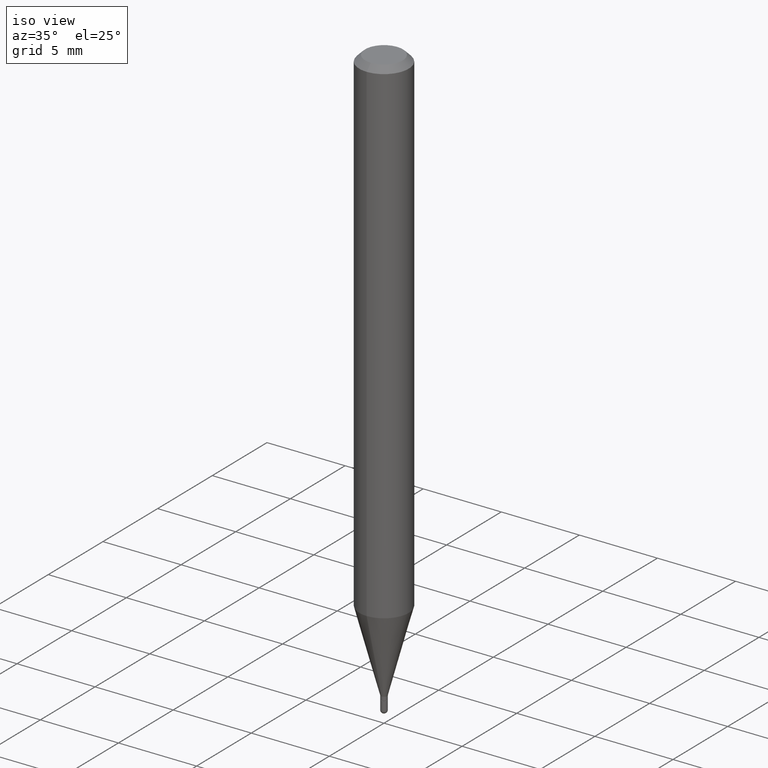
[diagram: clean part render]
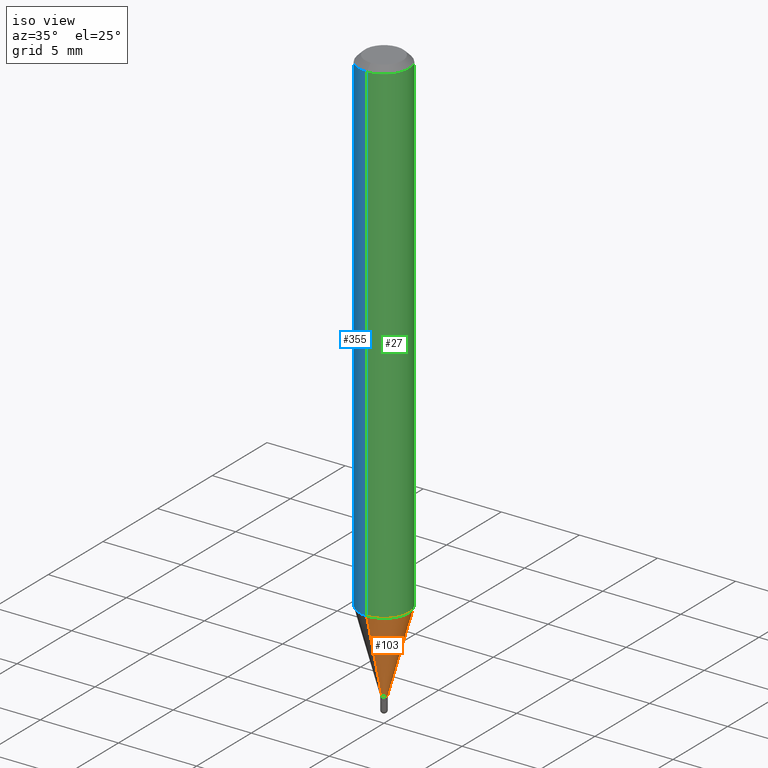
[diagram: same view with three faces highlighted in distinct colors, each labeled with its STEP entity id]
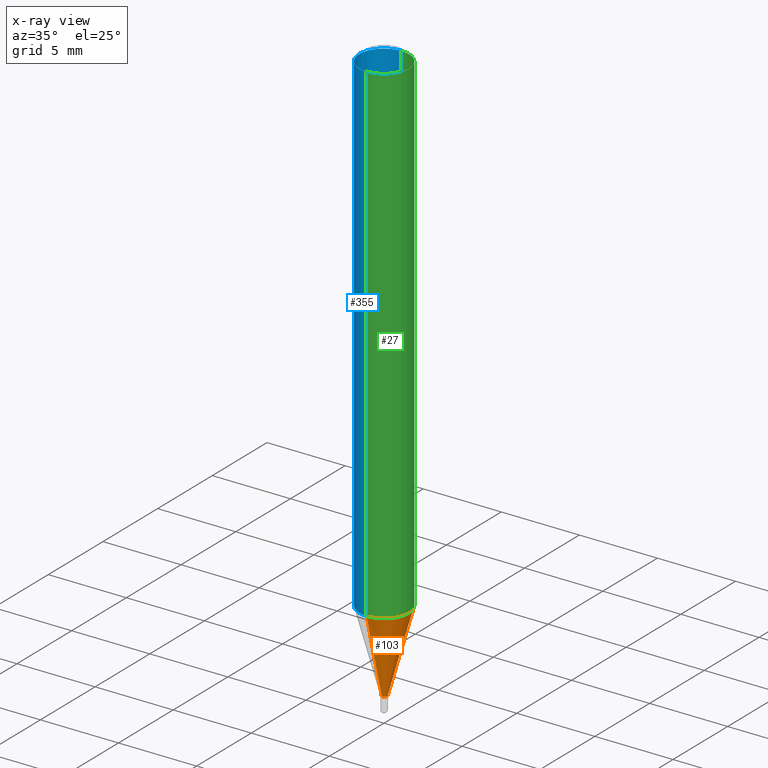
[diagram: x-ray of the same camera — body ghosted, the three highlighted faces saturated]
A machine part, iso view with three faces highlighted in distinct colors.
The next image is the same camera in x-ray (body ghosted, the three faces saturated) — at least one of them is partly hidden behind the body in this view.
Their STEP definitions:

[orange] entity #103 — the highlighted conical surface has half-angle 15 deg.
#5 = AXIS2_PLACEMENT_3D ( 'NONE', #76, #237, #117 ) ;
#12 = DIRECTION ( 'NONE',  ( -2.438888398687161749E-29, 3.500904856913780958E-15, 1.000000000000000000 ) ) ;
#15 = VECTOR ( 'NONE', #78, 39.37007874015748143 ) ;
#18 = CARTESIAN_POINT ( 'NONE',  ( -5.446710888591297207E-17, -0.007800000000004489974, -1.459000000000000519 ) ) ;
#21 = CARTESIAN_POINT ( 'NONE',  ( -4.364351673553611504E-16, -0.06250000000000441314, -1.254856820825980934 ) ) ;
#23 = CIRCLE ( 'NONE', #5, 0.06250000000000002776 ) ;
#26 = VERTEX_POINT ( 'NONE', #21 ) ;
#39 = AXIS2_PLACEMENT_3D ( 'NONE', #153, #362, #319 ) ;
#42 = CARTESIAN_POINT ( 'NONE',  ( 3.558338173684570517E-29, -5.107820186237207836E-15, -1.459000000000000519 ) ) ;
#76 = CARTESIAN_POINT ( 'NONE',  ( 3.060455742325940316E-29, -4.393134338761063639E-15, -1.254856820825981156 ) ) ;
#78 = DIRECTION ( 'NONE',  ( 1.839019923739600315E-15, 0.2588190451025249583, 0.9659258262890670910 ) ) ;
#100 = ORIENTED_EDGE ( 'NONE', *, *, #390, .F. ) ;
#103 = ADVANCED_FACE ( 'NONE', ( #154 ), #152, .T. ) ;
#117 = DIRECTION ( 'NONE',  ( -6.982962677686265922E-15, -1.000000000000000000, 4.370956789862819572E-15 ) ) ;
#125 = CARTESIAN_POINT ( 'NONE',  ( 4.440892098500931845E-16, 0.06249999999999561462, -1.254856820825981378 ) ) ;
#129 = CIRCLE ( 'NONE', #239, 0.007799999999999381213 ) ;
#134 = CARTESIAN_POINT ( 'NONE',  ( 2.497557716197062816E-16, 0.007799999999994272452, -1.459000000000000519 ) ) ;
#140 = ORIENTED_EDGE ( 'NONE', *, *, #304, .T. ) ;
#148 = ORIENTED_EDGE ( 'NONE', *, *, #338, .T. ) ;
#152 = CONICAL_SURFACE ( 'NONE', #39, 0.007799999999999381213, 0.2617993877991502960 ) ;
#153 = CARTESIAN_POINT ( 'NONE',  ( 3.558338173684570517E-29, -5.107820186237207836E-15, -1.459000000000000519 ) ) ;
#154 = FACE_OUTER_BOUND ( 'NONE', #307, .T. ) ;
#164 = LINE ( 'NONE', #366, #15 ) ;
#166 = EDGE_CURVE ( 'NONE', #26, #331, #23, .T. ) ;
#237 = DIRECTION ( 'NONE',  ( -2.438888398687161749E-29, 3.500904856913780958E-15, 1.000000000000000000 ) ) ;
#239 = AXIS2_PLACEMENT_3D ( 'NONE', #42, #12, #291 ) ;
#287 = ORIENTED_EDGE ( 'NONE', *, *, #166, .F. ) ;
#291 = DIRECTION ( 'NONE',  ( -6.982962677686266711E-15, -1.000000000000000000, 0.000000000000000000 ) ) ;
#304 = EDGE_CURVE ( 'NONE', #410, #449, #129, .T. ) ;
#307 = EDGE_LOOP ( 'NONE', ( #140, #148, #287, #100 ) ) ;
#319 = DIRECTION ( 'NONE',  ( -6.982962677686266711E-15, -1.000000000000000000, 0.000000000000000000 ) ) ;
#331 = VERTEX_POINT ( 'NONE', #125 ) ;
#338 = EDGE_CURVE ( 'NONE', #449, #331, #164, .T. ) ;
#362 = DIRECTION ( 'NONE',  ( -2.438888398687161749E-29, 3.500904856913780958E-15, 1.000000000000000000 ) ) ;
#366 = CARTESIAN_POINT ( 'NONE',  ( 5.542233338931899661E-17, 0.007799999999994273320, -1.459000000000000519 ) ) ;
#390 = EDGE_CURVE ( 'NONE', #410, #26, #498, .T. ) ;
#410 = VERTEX_POINT ( 'NONE', #450 ) ;
#420 = DIRECTION ( 'NONE',  ( -1.807323732225330139E-15, -0.2588190451025181860, 0.9659258262890689783 ) ) ;
#437 = VECTOR ( 'NONE', #420, 39.37007874015748143 ) ;
#449 = VERTEX_POINT ( 'NONE', #134 ) ;
#450 = CARTESIAN_POINT ( 'NONE',  ( -5.446710888591297207E-17, -0.007800000000004489974, -1.459000000000000519 ) ) ;
#498 = LINE ( 'NONE', #18, #437 ) ;

[blue] entity #355 — the highlighted cylindrical surface (edge-blend (fillet) strip) has radius 1.5875 mm, axis along (-0, 0, 1).
#2 = DIRECTION ( 'NONE',  ( -2.438888398687161749E-29, 3.500904856913780958E-15, 1.000000000000000000 ) ) ;
#10 = EDGE_LOOP ( 'NONE', ( #232, #271, #378, #414 ) ) ;
#21 = CARTESIAN_POINT ( 'NONE',  ( -4.364351673553611504E-16, -0.06250000000000441314, -1.254856820825980934 ) ) ;
#26 = VERTEX_POINT ( 'NONE', #21 ) ;
#36 = DIRECTION ( 'NONE',  ( -2.438888398687161749E-29, 3.500904856913780958E-15, 1.000000000000000000 ) ) ;
#44 = DIRECTION ( 'NONE',  ( -2.438888398687161749E-29, 3.500904856913780958E-15, 1.000000000000000000 ) ) ;
#109 = EDGE_CURVE ( 'NONE', #168, #342, #222, .T. ) ;
#122 = FACE_OUTER_BOUND ( 'NONE', #10, .T. ) ;
#125 = CARTESIAN_POINT ( 'NONE',  ( 4.440892098500931845E-16, 0.06249999999999561462, -1.254856820825981378 ) ) ;
#160 = AXIS2_PLACEMENT_3D ( 'NONE', #323, #36, #193 ) ;
#162 = DIRECTION ( 'NONE',  ( -6.982962677686265922E-15, -1.000000000000000000, 3.500904856913781353E-15 ) ) ;
#168 = VERTEX_POINT ( 'NONE', #398 ) ;
#175 = LINE ( 'NONE', #299, #495 ) ;
#193 = DIRECTION ( 'NONE',  ( -6.982962677686265922E-15, -1.000000000000000000, 3.517254291842738179E-15 ) ) ;
#222 = CIRCLE ( 'NONE', #160, 0.06250000000000001388 ) ;
#232 = ORIENTED_EDGE ( 'NONE', *, *, #446, .F. ) ;
#246 = CYLINDRICAL_SURFACE ( 'NONE', #494, 0.06250000000000001388 ) ;
#261 = LINE ( 'NONE', #301, #506 ) ;
#271 = ORIENTED_EDGE ( 'NONE', *, *, #370, .T. ) ;
#297 = DIRECTION ( 'NONE',  ( -2.438888398687161749E-29, 3.500904856913780958E-15, 1.000000000000000000 ) ) ;
#299 = CARTESIAN_POINT ( 'NONE',  ( -4.364351673553917187E-16, -0.06250000000000001388, 2.188065535571113838E-16 ) ) ;
#301 = CARTESIAN_POINT ( 'NONE',  ( 4.440892098500627148E-16, 0.06250000000000001388, -2.188065535571113838E-16 ) ) ;
#320 = AXIS2_PLACEMENT_3D ( 'NONE', #444, #2, #325 ) ;
#323 = CARTESIAN_POINT ( 'NONE',  ( 3.658332598030829977E-31, -5.251357285370796693E-17, -0.01500000000000035853 ) ) ;
#325 = DIRECTION ( 'NONE',  ( -6.982962677686265922E-15, -1.000000000000000000, 4.370956789862819572E-15 ) ) ;
#329 = CARTESIAN_POINT ( 'NONE',  ( -4.364351673553913736E-16, -0.06250000000000006939, -0.01500000000000013822 ) ) ;
#331 = VERTEX_POINT ( 'NONE', #125 ) ;
#342 = VERTEX_POINT ( 'NONE', #329 ) ;
#345 = CIRCLE ( 'NONE', #320, 0.06250000000000002776 ) ;
#355 = ADVANCED_FACE ( 'NONE', ( #122 ), #246, .T. ) ;
#370 = EDGE_CURVE ( 'NONE', #331, #26, #345, .T. ) ;
#371 = CARTESIAN_POINT ( 'NONE',  ( 0.000000000000000000, 0.000000000000000000, 0.000000000000000000 ) ) ;
#378 = ORIENTED_EDGE ( 'NONE', *, *, #403, .T. ) ;
#380 = DIRECTION ( 'NONE',  ( -2.438888398687161749E-29, 3.500904856913780958E-15, 1.000000000000000000 ) ) ;
#398 = CARTESIAN_POINT ( 'NONE',  ( 4.440892098500935790E-16, 0.06249999999999996531, -0.01500000000000057884 ) ) ;
#403 = EDGE_CURVE ( 'NONE', #26, #342, #175, .T. ) ;
#414 = ORIENTED_EDGE ( 'NONE', *, *, #109, .F. ) ;
#444 = CARTESIAN_POINT ( 'NONE',  ( 3.060455742325940316E-29, -4.393134338761063639E-15, -1.254856820825981156 ) ) ;
#446 = EDGE_CURVE ( 'NONE', #331, #168, #261, .T. ) ;
#494 = AXIS2_PLACEMENT_3D ( 'NONE', #371, #44, #162 ) ;
#495 = VECTOR ( 'NONE', #380, 39.37007874015748143 ) ;
#506 = VECTOR ( 'NONE', #297, 39.37007874015748143 ) ;

[green] entity #27 — the highlighted cylindrical surface (edge-blend (fillet) strip) has radius 1.5875 mm, axis along (-0, 0, 1).
#5 = AXIS2_PLACEMENT_3D ( 'NONE', #76, #237, #117 ) ;
#14 = AXIS2_PLACEMENT_3D ( 'NONE', #344, #497, #65 ) ;
#21 = CARTESIAN_POINT ( 'NONE',  ( -4.364351673553611504E-16, -0.06250000000000441314, -1.254856820825980934 ) ) ;
#23 = CIRCLE ( 'NONE', #5, 0.06250000000000002776 ) ;
#26 = VERTEX_POINT ( 'NONE', #21 ) ;
#27 = ADVANCED_FACE ( 'NONE', ( #176 ), #306, .T. ) ;
#32 = AXIS2_PLACEMENT_3D ( 'NONE', #112, #235, #93 ) ;
#65 = DIRECTION ( 'NONE',  ( -6.982962677686265922E-15, -1.000000000000000000, 3.500904856913781353E-15 ) ) ;
#71 = EDGE_CURVE ( 'NONE', #342, #168, #253, .T. ) ;
#76 = CARTESIAN_POINT ( 'NONE',  ( 3.060455742325940316E-29, -4.393134338761063639E-15, -1.254856820825981156 ) ) ;
#93 = DIRECTION ( 'NONE',  ( -6.982962677686265922E-15, -1.000000000000000000, 3.517254291842738179E-15 ) ) ;
#112 = CARTESIAN_POINT ( 'NONE',  ( 3.658332598030829977E-31, -5.251357285370796693E-17, -0.01500000000000035853 ) ) ;
#117 = DIRECTION ( 'NONE',  ( -6.982962677686265922E-15, -1.000000000000000000, 4.370956789862819572E-15 ) ) ;
#125 = CARTESIAN_POINT ( 'NONE',  ( 4.440892098500931845E-16, 0.06249999999999561462, -1.254856820825981378 ) ) ;
#166 = EDGE_CURVE ( 'NONE', #26, #331, #23, .T. ) ;
#168 = VERTEX_POINT ( 'NONE', #398 ) ;
#171 = ORIENTED_EDGE ( 'NONE', *, *, #446, .T. ) ;
#175 = LINE ( 'NONE', #299, #495 ) ;
#176 = FACE_OUTER_BOUND ( 'NONE', #248, .T. ) ;
#235 = DIRECTION ( 'NONE',  ( -2.438888398687161749E-29, 3.500904856913780958E-15, 1.000000000000000000 ) ) ;
#237 = DIRECTION ( 'NONE',  ( -2.438888398687161749E-29, 3.500904856913780958E-15, 1.000000000000000000 ) ) ;
#245 = ORIENTED_EDGE ( 'NONE', *, *, #71, .F. ) ;
#248 = EDGE_LOOP ( 'NONE', ( #490, #171, #245, #298 ) ) ;
#253 = CIRCLE ( 'NONE', #32, 0.06250000000000001388 ) ;
#261 = LINE ( 'NONE', #301, #506 ) ;
#297 = DIRECTION ( 'NONE',  ( -2.438888398687161749E-29, 3.500904856913780958E-15, 1.000000000000000000 ) ) ;
#298 = ORIENTED_EDGE ( 'NONE', *, *, #403, .F. ) ;
#299 = CARTESIAN_POINT ( 'NONE',  ( -4.364351673553917187E-16, -0.06250000000000001388, 2.188065535571113838E-16 ) ) ;
#301 = CARTESIAN_POINT ( 'NONE',  ( 4.440892098500627148E-16, 0.06250000000000001388, -2.188065535571113838E-16 ) ) ;
#306 = CYLINDRICAL_SURFACE ( 'NONE', #14, 0.06250000000000001388 ) ;
#329 = CARTESIAN_POINT ( 'NONE',  ( -4.364351673553913736E-16, -0.06250000000000006939, -0.01500000000000013822 ) ) ;
#331 = VERTEX_POINT ( 'NONE', #125 ) ;
#342 = VERTEX_POINT ( 'NONE', #329 ) ;
#344 = CARTESIAN_POINT ( 'NONE',  ( 0.000000000000000000, 0.000000000000000000, 0.000000000000000000 ) ) ;
#380 = DIRECTION ( 'NONE',  ( -2.438888398687161749E-29, 3.500904856913780958E-15, 1.000000000000000000 ) ) ;
#398 = CARTESIAN_POINT ( 'NONE',  ( 4.440892098500935790E-16, 0.06249999999999996531, -0.01500000000000057884 ) ) ;
#403 = EDGE_CURVE ( 'NONE', #26, #342, #175, .T. ) ;
#446 = EDGE_CURVE ( 'NONE', #331, #168, #261, .T. ) ;
#490 = ORIENTED_EDGE ( 'NONE', *, *, #166, .T. ) ;
#495 = VECTOR ( 'NONE', #380, 39.37007874015748143 ) ;
#497 = DIRECTION ( 'NONE',  ( -2.438888398687161749E-29, 3.500904856913780958E-15, 1.000000000000000000 ) ) ;
#506 = VECTOR ( 'NONE', #297, 39.37007874015748143 ) ;